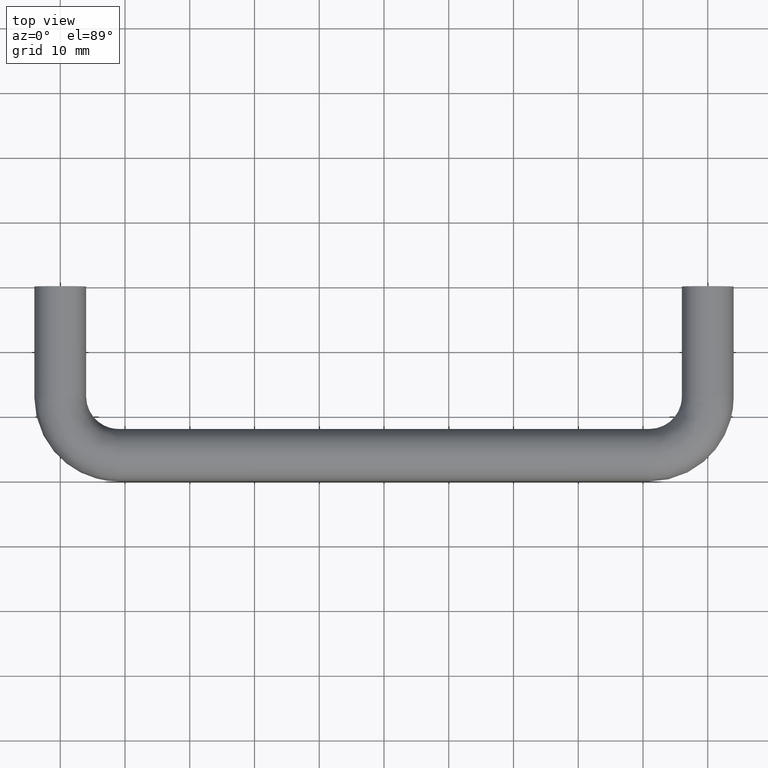
[diagram: clean part render]
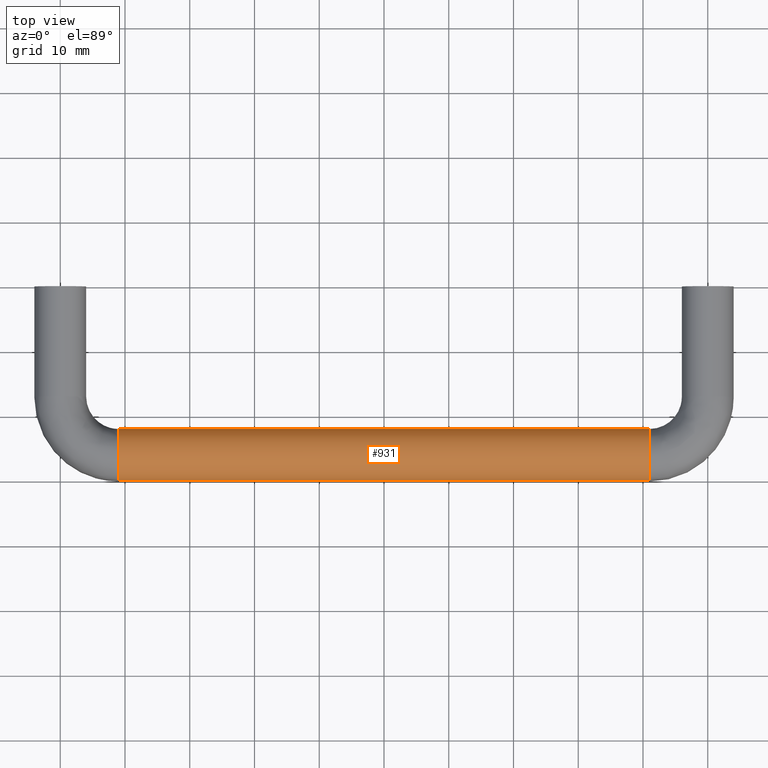
[diagram: same view with one face highlighted and labeled with its STEP entity id]
A machine part, top view. The second image highlights one B-rep face of the part: STEP entity #931.
In plain terms, the highlighted face is a freeform B-spline surface patch.
Its self-contained STEP definition (entity closure, byte-faithful):
#698=CARTESIAN_POINT('',(91.0,-30.0,3.0));
#699=VERTEX_POINT('',#698);
#756=CARTESIAN_POINT('',(91.0,-22.0,3.0));
#757=VERTEX_POINT('',#756);
#771=CARTESIAN_POINT('',(91.0,-22.0,3.0));
#772=CARTESIAN_POINT('',(91.0,-22.000000000000007,6.999999999999999));
#773=CARTESIAN_POINT('',(91.0,-26.0,7.0));
#774=CARTESIAN_POINT('',(91.0,-30.000000000000004,6.999999999999999));
#775=CARTESIAN_POINT('',(91.0,-30.0,3.0));
#783=(BOUNDED_CURVE()B_SPLINE_CURVE(2,(#771,#772,#773,#774,#775),.UNSPECIFIED.,.F.,.U.)B_SPLINE_CURVE_WITH_KNOTS((3,2,3),(0.0,0.500000000000000,1.0),.UNSPECIFIED.)CURVE()GEOMETRIC_REPRESENTATION_ITEM()RATIONAL_B_SPLINE_CURVE((1.0,0.707106781186548,1.0,0.707106781186548,1.0))REPRESENTATION_ITEM(''));
#784=EDGE_CURVE('',#757,#699,#783,.T.);
#872=CARTESIAN_POINT('',(9.0,-30.0,3.0));
#873=VERTEX_POINT('',#872);
#874=CARTESIAN_POINT('',(9.0,-30.0,3.0));
#875=CARTESIAN_POINT('',(91.0,-30.0,3.0));
#876=QUASI_UNIFORM_CURVE('',1,(#874,#875),.UNSPECIFIED.,.F.,.U.);
#877=EDGE_CURVE('',#873,#699,#876,.T.);
#887=CARTESIAN_POINT('',(6.949999999999996,-29.998629299902230,2.895292206768502));
#888=CARTESIAN_POINT('',(93.101250000000022,-29.998629299902230,2.895292206768502));
#889=CARTESIAN_POINT('',(6.949999999999999,-30.108968291371600,7.108968291371591));
#890=CARTESIAN_POINT('',(93.101250000000036,-30.108968291371600,7.108968291371591));
#891=CARTESIAN_POINT('',(6.949999999999996,-25.895292206768509,6.998629299902220));
#892=CARTESIAN_POINT('',(93.101250000000022,-25.895292206768509,6.998629299902220));
#893=CARTESIAN_POINT('',(6.949999999999999,-21.681616122165430,6.888290308432843));
#894=CARTESIAN_POINT('',(93.101250000000036,-21.681616122165430,6.888290308432843));
#895=CARTESIAN_POINT('',(6.949999999999996,-22.012330665067498,2.686163617088617));
#896=CARTESIAN_POINT('',(93.101250000000022,-22.012330665067498,2.686163617088617));
#904=(BOUNDED_SURFACE()B_SPLINE_SURFACE(1,2,((#887,#889,#891,#893,#895),(#888,#890,#892,#894,#896)),.UNSPECIFIED.,.F.,.F.,.U.)B_SPLINE_SURFACE_WITH_KNOTS((2,2),(3,2,3),(0.0,86.151250000000047),(0.0,6.874142495469371,13.748284990938741),.UNSPECIFIED.)GEOMETRIC_REPRESENTATION_ITEM()RATIONAL_B_SPLINE_SURFACE(((1.0,0.688354575693754,1.0,0.688354575693754,1.0),(1.0,0.688354575693754,1.0,0.688354575693754,1.0)))REPRESENTATION_ITEM('')SURFACE());
#905=ORIENTED_EDGE('',*,*,#877,.T.);
#906=ORIENTED_EDGE('',*,*,#784,.F.);
#907=CARTESIAN_POINT('',(9.0,-22.0,3.0));
#908=VERTEX_POINT('',#907);
#909=CARTESIAN_POINT('',(9.0,-22.0,3.0));
#910=CARTESIAN_POINT('',(91.0,-22.0,3.0));
#911=QUASI_UNIFORM_CURVE('',1,(#909,#910),.UNSPECIFIED.,.F.,.U.);
#912=EDGE_CURVE('',#908,#757,#911,.T.);
#913=ORIENTED_EDGE('',*,*,#912,.F.);
#914=CARTESIAN_POINT('',(9.0,-22.0,3.0));
#915=CARTESIAN_POINT('',(9.000000000000002,-22.000000000000007,6.999999999999999));
#916=CARTESIAN_POINT('',(9.0,-26.0,7.0));
#917=CARTESIAN_POINT('',(9.000000000000002,-30.000000000000004,6.999999999999999));
#918=CARTESIAN_POINT('',(9.0,-30.0,3.0));
#926=(BOUNDED_CURVE()B_SPLINE_CURVE(2,(#914,#915,#916,#917,#918),.UNSPECIFIED.,.F.,.U.)B_SPLINE_CURVE_WITH_KNOTS((3,2,3),(0.0,0.500000000000000,1.0),.UNSPECIFIED.)CURVE()GEOMETRIC_REPRESENTATION_ITEM()RATIONAL_B_SPLINE_CURVE((1.0,0.707106781186548,1.0,0.707106781186548,1.0))REPRESENTATION_ITEM(''));
#927=EDGE_CURVE('',#908,#873,#926,.T.);
#928=ORIENTED_EDGE('',*,*,#927,.T.);
#929=EDGE_LOOP('',(#905,#906,#913,#928));
#930=FACE_OUTER_BOUND('',#929,.T.);
#931=ADVANCED_FACE('',(#930),#904,.T.);